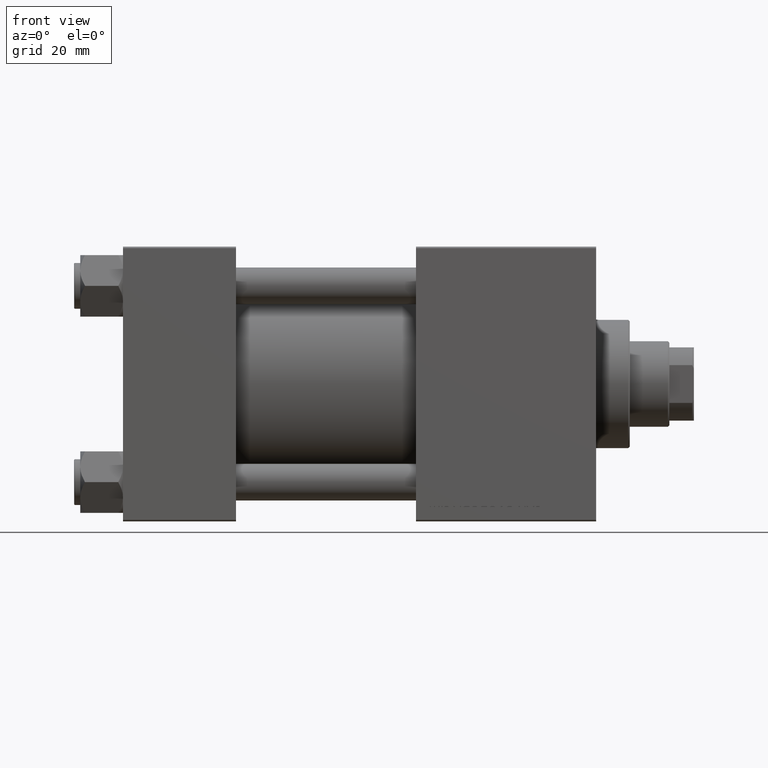
[diagram: clean part render]
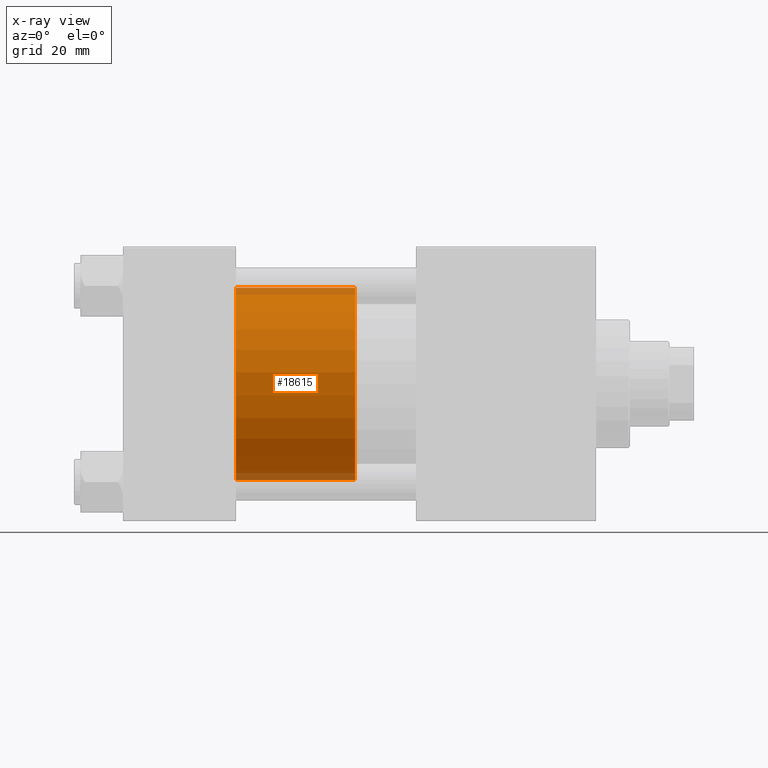
[diagram: x-ray — body ghosted, one internal face saturated and labeled with its STEP entity id]
A machine part, front view, then the same camera in x-ray: the body is ghosted and one INTERNAL B-rep face — a face not visible from any outside direction — is saturated and labeled: STEP entity #18615.
In plain terms, the highlighted cylindrical surface (partial cylindrical patch) has radius 31.5 mm, axis along (-1, 0, 0).
Its self-contained STEP definition (entity closure, byte-faithful):
#152 = DIRECTION ( 'NONE',  ( -0.000000000000000000, -0.000000000000000000, -1.000000000000000000 ) ) ;
#390 = VERTEX_POINT ( 'NONE', #18538 ) ;
#1384 = AXIS2_PLACEMENT_3D ( 'NONE', #47420, #46919, #43598 ) ;
#10536 = VERTEX_POINT ( 'NONE', #14292 ) ;
#11152 = EDGE_CURVE ( 'NONE', #390, #37898, #29012, .T. ) ;
#11847 = FACE_OUTER_BOUND ( 'NONE', #16248, .T. ) ;
#11930 = CARTESIAN_POINT ( 'NONE',  ( 0.000000000000000000, 0.000000000000000000, 0.000000000000000000 ) ) ;
#12292 = LINE ( 'NONE', #27762, #43653 ) ;
#12465 = VECTOR ( 'NONE', #25195, 1000.000000000000000 ) ;
#13738 = ORIENTED_EDGE ( 'NONE', *, *, #11152, .T. ) ;
#14292 = CARTESIAN_POINT ( 'NONE',  ( -31.50000000000000000, 0.000000000000000000, 39.00000000000000000 ) ) ;
#15148 = CIRCLE ( 'NONE', #43555, 31.50000000000000000 ) ;
#16248 = EDGE_LOOP ( 'NONE', ( #18466, #13738, #41022, #48167 ) ) ;
#18466 = ORIENTED_EDGE ( 'NONE', *, *, #40328, .F. ) ;
#18538 = CARTESIAN_POINT ( 'NONE',  ( 31.50000000000000000, 3.857637417314162689E-15, 39.00000000000000000 ) ) ;
#18615 = ADVANCED_FACE ( 'NONE', ( #11847 ), #27313, .T. ) ;
#19921 = VERTEX_POINT ( 'NONE', #39588 ) ;
#24145 = CARTESIAN_POINT ( 'NONE',  ( 31.50000000000000000, 3.857637417314162689E-15, 0.000000000000000000 ) ) ;
#25195 = DIRECTION ( 'NONE',  ( -0.000000000000000000, -0.000000000000000000, -1.000000000000000000 ) ) ;
#25817 = DIRECTION ( 'NONE',  ( 1.000000000000000000, 0.000000000000000000, 0.000000000000000000 ) ) ;
#27313 = CYLINDRICAL_SURFACE ( 'NONE', #47831, 31.50000000000000000 ) ;
#27762 = CARTESIAN_POINT ( 'NONE',  ( -31.50000000000000000, 0.000000000000000000, 39.00000000000000000 ) ) ;
#29012 = LINE ( 'NONE', #44520, #12465 ) ;
#35443 = CARTESIAN_POINT ( 'NONE',  ( 0.000000000000000000, 0.000000000000000000, 39.00000000000000000 ) ) ;
#36023 = DIRECTION ( 'NONE',  ( 0.000000000000000000, 0.000000000000000000, 1.000000000000000000 ) ) ;
#37898 = VERTEX_POINT ( 'NONE', #24145 ) ;
#39588 = CARTESIAN_POINT ( 'NONE',  ( -31.50000000000000000, 0.000000000000000000, 0.000000000000000000 ) ) ;
#40030 = EDGE_CURVE ( 'NONE', #37898, #19921, #15148, .T. ) ;
#40328 = EDGE_CURVE ( 'NONE', #390, #10536, #47617, .T. ) ;
#41022 = ORIENTED_EDGE ( 'NONE', *, *, #40030, .T. ) ;
#42078 = EDGE_CURVE ( 'NONE', #10536, #19921, #12292, .T. ) ;
#42820 = DIRECTION ( 'NONE',  ( -1.000000000000000000, 0.000000000000000000, 0.000000000000000000 ) ) ;
#43520 = DIRECTION ( 'NONE',  ( -0.000000000000000000, -0.000000000000000000, -1.000000000000000000 ) ) ;
#43555 = AXIS2_PLACEMENT_3D ( 'NONE', #11930, #36023, #25817 ) ;
#43598 = DIRECTION ( 'NONE',  ( 1.000000000000000000, 0.000000000000000000, 0.000000000000000000 ) ) ;
#43653 = VECTOR ( 'NONE', #43520, 1000.000000000000000 ) ;
#44520 = CARTESIAN_POINT ( 'NONE',  ( 31.50000000000000000, 3.857637417314162689E-15, 39.00000000000000000 ) ) ;
#46919 = DIRECTION ( 'NONE',  ( 0.000000000000000000, 0.000000000000000000, 1.000000000000000000 ) ) ;
#47420 = CARTESIAN_POINT ( 'NONE',  ( 0.000000000000000000, 0.000000000000000000, 39.00000000000000000 ) ) ;
#47617 = CIRCLE ( 'NONE', #1384, 31.50000000000000000 ) ;
#47831 = AXIS2_PLACEMENT_3D ( 'NONE', #35443, #152, #42820 ) ;
#48167 = ORIENTED_EDGE ( 'NONE', *, *, #42078, .F. ) ;